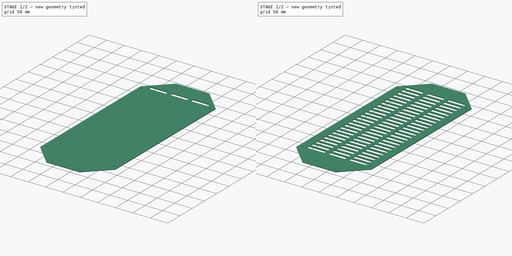
[diagram: build sequence overview — one tinted view per stage of 2, left to right]
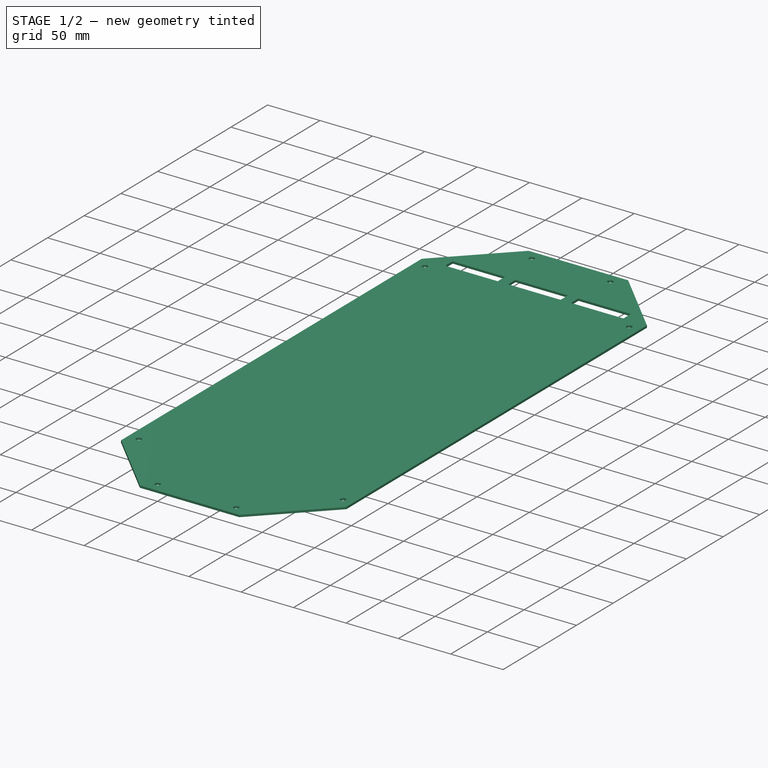
[diagram: stage 1 of 2 — iso view after this stage's code; geometry added in this stage tinted green]
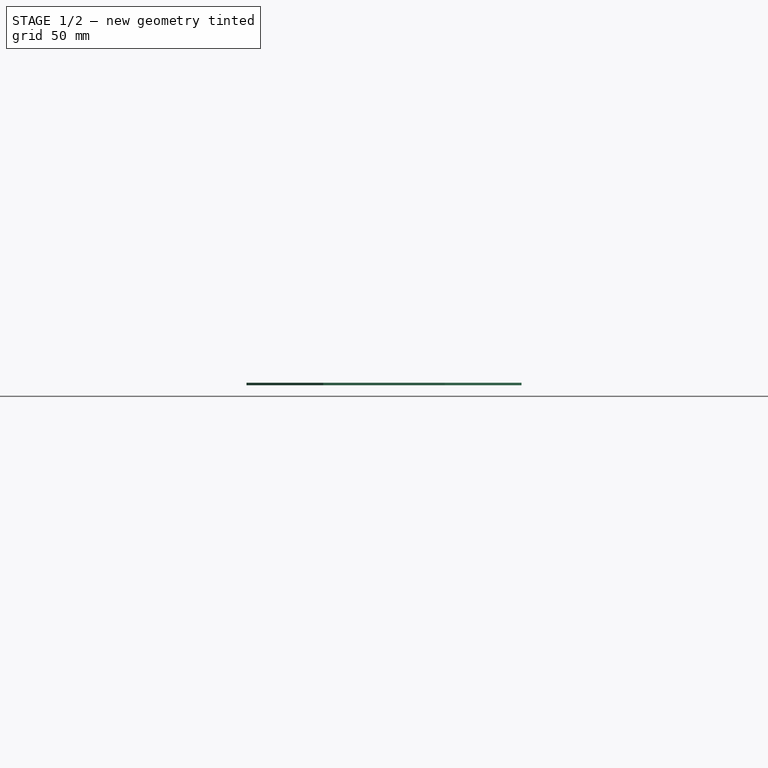
[diagram: stage 1 of 2 — front view after this stage's code; geometry added in this stage tinted green]
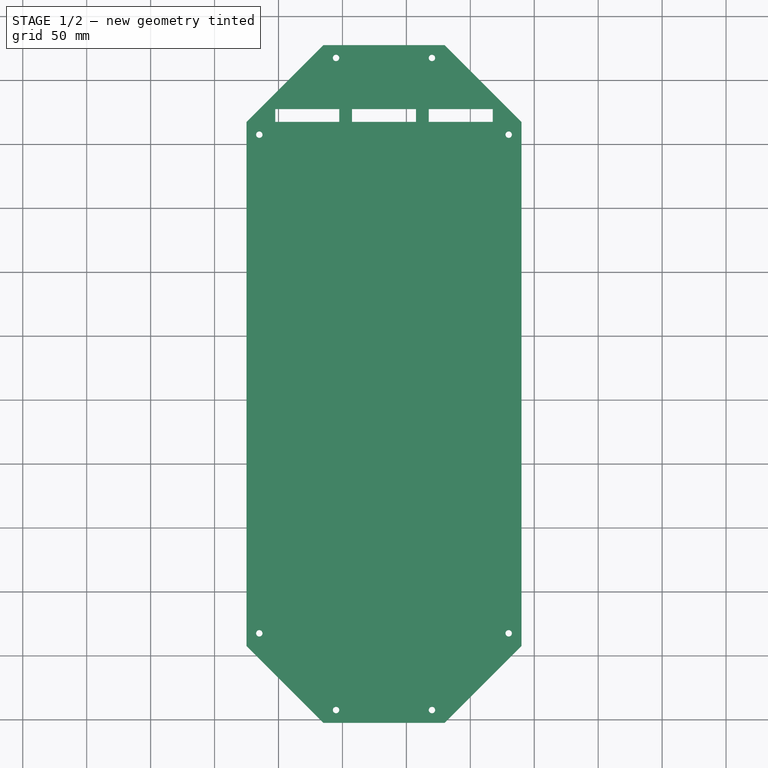
[diagram: stage 1 of 2 — top view after this stage's code; geometry added in this stage tinted green]
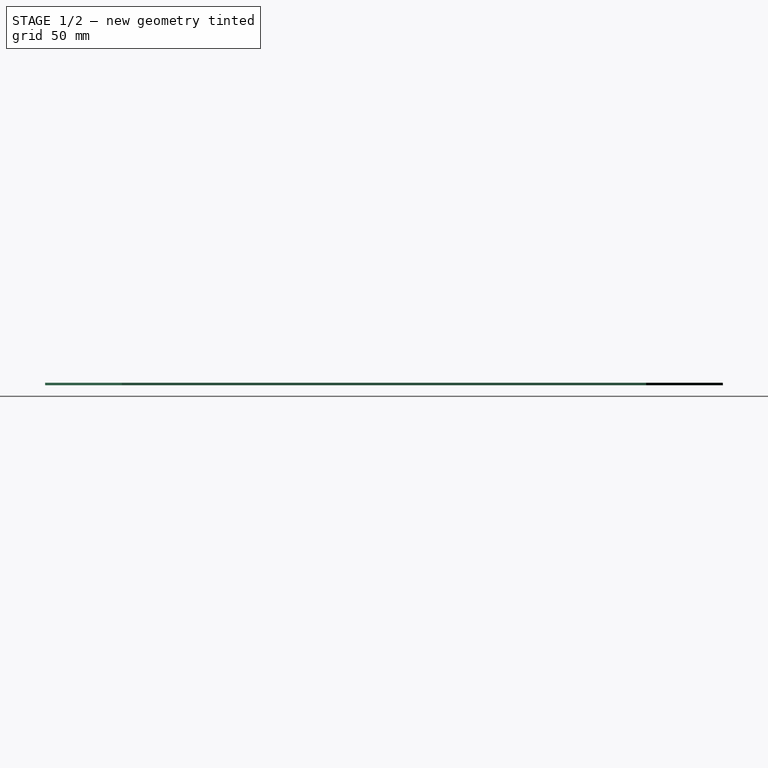
[diagram: stage 1 of 2 — right view after this stage's code; geometry added in this stage tinted green]
FCSTD DOCUMENT  (FreeCAD 0.16R6698 (Git))
Label: Back_Plate
License: All rights reserved
LicenseURL: http://en.wikipedia.org/wiki/All_rights_reserved
objects: Sketcher::SketchObject×2, PartDesign::Pad×1, PartDesign::Pocket×1, PartDesign::LinearPattern×1
note: 7 computed .brp shape members not serialized (recipe doc carries the construction recipe); baked Part::Feature solids carry a one-line shape summary decoded from their .brp

FEATURE [Sketcher::SketchObject] Sketch
  sketch-geometry (16):
    g0: LineSegment StartX=-15 StartY=277.5 StartZ=0 EndX=80 EndY=277.5 EndZ=0
    g1: LineSegment StartX=140 StartY=217.5 StartZ=0 EndX=140 EndY=-192.5 EndZ=0
    g2: LineSegment StartX=80 StartY=-252.5 StartZ=0 EndX=-15 EndY=-252.5 EndZ=0
    g3: LineSegment StartX=-75 StartY=-192.5 StartZ=0 EndX=-75 EndY=217.5 EndZ=0
    g4: LineSegment StartX=-15 StartY=277.5 StartZ=0 EndX=-75 EndY=217.5 EndZ=0
    g5: LineSegment StartX=80 StartY=277.5 StartZ=0 EndX=140 EndY=217.5 EndZ=0
    g6: LineSegment StartX=140 StartY=-192.5 StartZ=0 EndX=80 EndY=-252.5 EndZ=0
    g7: LineSegment StartX=-15 StartY=-252.5 StartZ=0 EndX=-75 EndY=-192.5 EndZ=0
    g8: Circle CenterX=-5 CenterY=267.5 CenterZ=0 NormalX=0 NormalY=0 NormalZ=1 Radius=2.5
    g9: Circle CenterX=70 CenterY=267.5 CenterZ=0 NormalX=0 NormalY=0 NormalZ=1 Radius=2.5
    g10: Circle CenterX=-65 CenterY=207.5 CenterZ=0 NormalX=0 NormalY=0 NormalZ=1 Radius=2.5
    g11: Circle CenterX=-65 CenterY=-182.5 CenterZ=0 NormalX=0 NormalY=0 NormalZ=1 Radius=2.5
    g12: Circle CenterX=-5 CenterY=-242.5 CenterZ=0 NormalX=0 NormalY=0 NormalZ=1 Radius=2.5
    g13: Circle CenterX=70 CenterY=-242.5 CenterZ=0 NormalX=0 NormalY=0 NormalZ=1 Radius=2.5
    g14: Circle CenterX=130 CenterY=-182.5 CenterZ=0 NormalX=0 NormalY=0 NormalZ=1 Radius=2.5
    g15: Circle CenterX=130 CenterY=207.5 CenterZ=0 NormalX=0 NormalY=0 NormalZ=1 Radius=2.5
  constraints (44):
    c: Horizontal(g0)
    c: Horizontal(g2)
    c: Vertical(g1)
    c: Vertical(g3)
    c: Coincident(g4,g0)
    c: Coincident(g4,g3)
    c: Coincident(g5,g0)
    c: Coincident(g5,g1)
    c: Coincident(g6,g1)
    c: Coincident(g6,g2)
    c: Coincident(g7,g2)
    c: Coincident(g7,g3)
    c: DistanceX(g7,g7) = 60
    c: DistanceY(g7,g7) = 60
    c: DistanceY(g4,g4) = 60
    c: DistanceX(g4,g4) = 60
    c: DistanceX(g6,g6) = 60
    c: DistanceY(g6,g6) = 60
    c: DistanceY(g5,g5) = 60
    c: DistanceX(g5,g5) = 60
    c: DistanceX(g0,g0) = 95
    c: DistanceY(g3,g3) = 410
    c: Radius(g15) = 2.5
    c: Equal(g15,g9)
    c: Equal(g15,g8)
    c: Equal(g15, g10-g14) x5
    c: DistanceY(g2,g12) = 10
    c: DistanceX(g3,g11) = 10
    c: DistanceY(g2,g13) = 10
    c: DistanceX(g14,g1) = 10
    c: DistanceX(g13,g2) = 10
    c: DistanceY(g1,g14) = 10
    c: DistanceX(g2,g12) = 10
    c: DistanceY(g3,g11) = 10
    c: DistanceX(g3,g10) = 10
    c: DistanceY(g10,g3) = 10
    c: DistanceY(g8,g0) = 10
    c: DistanceX(g0,g8) = 10
    c: DistanceX(g9,g0) = 10
    c: DistanceY(g9,g0) = 10
    c: DistanceX(g15,g1) = 10
    c: DistanceY(g15,g1) = 10
    c: DistanceX(g-1,g1) = 140
    c: DistanceY(g-1,g3) = 217.5
FEATURE [PartDesign::Pad] Pad
  Length = 2
  Length2 = 100
  Sketch = -> Sketch
  Type = 0
FEATURE [Sketcher::SketchObject] Sketch001
  ExternalGeometry = -> [Pad]
  Placement = pos=(0,0,2) rot=(0,0,1;0rad)
  Support = -> Pad [Face18]
  sketch-geometry (12):
    g0: LineSegment StartX=-52.5 StartY=217.5 StartZ=0 EndX=-2.5 EndY=217.5 EndZ=0
    g1: LineSegment StartX=-2.5 StartY=217.5 StartZ=0 EndX=-2.5 EndY=227.5 EndZ=0
    g2: LineSegment StartX=117.5 StartY=217.5 StartZ=0 EndX=67.5 EndY=217.5 EndZ=0
    g3: LineSegment StartX=67.5 StartY=217.5 StartZ=0 EndX=67.5 EndY=227.5 EndZ=0
    g4: LineSegment StartX=117.5 StartY=217.5 StartZ=0 EndX=117.5 EndY=227.5 EndZ=0
    g5: LineSegment StartX=-52.5 StartY=217.5 StartZ=0 EndX=-52.5 EndY=227.5 EndZ=0
    g6: LineSegment StartX=-2.5 StartY=227.5 StartZ=0 EndX=-52.5 EndY=227.5 EndZ=0
    g7: LineSegment StartX=67.5 StartY=227.5 StartZ=0 EndX=117.5 EndY=227.5 EndZ=0
    g8: LineSegment StartX=7.5 StartY=227.5 StartZ=0 EndX=57.5 EndY=227.5 EndZ=0
    g9: LineSegment StartX=57.5 StartY=227.5 StartZ=0 EndX=57.5 EndY=217.5 EndZ=0
    g10: LineSegment StartX=57.5 StartY=217.5 StartZ=0 EndX=7.5 EndY=217.5 EndZ=0
    g11: LineSegment StartX=7.5 StartY=217.5 StartZ=0 EndX=7.5 EndY=227.5 EndZ=0
  constraints (36):
    c: Coincident(g0,g1)
    c: Horizontal(g0)
    c: Vertical(g1)
    c: Coincident(g2,g3)
    c: Horizontal(g2)
    c: Vertical(g3)
    c: DistanceX(g0,g0) = 50
    c: DistanceX(g2,g2) = 50
    c: DistanceY(g0,g2) = 0
    c: Coincident(g4,g2)
    c: Vertical(g4)
    c: Coincident(g5,g0)
    c: Vertical(g5)
    c: Horizontal(g6)
    c: Horizontal(g7)
    c: Coincident(g1,g6)
    c: Coincident(g3,g7)
    c: Coincident(g4,g7)
    c: Coincident(g5,g6)
    c: Coincident(g8,g9)
    c: Coincident(g9,g10)
    c: Coincident(g10,g11)
    c: Coincident(g11,g8)
    c: Horizontal(g8)
    c: Horizontal(g10)
    c: Vertical(g9)
    c: Vertical(g11)
    c: DistanceX(g8,g8) = 50
    c: DistanceY(g3,g8) = 0
    c: DistanceY(g8,g1) = 0
    c: DistanceY(g2,g9) = 0
    c: DistanceY(g5,g5) = 10
    c: DistanceX(g1,g8) = 10
    c: DistanceX(g8,g3) = 10
    c: DistanceX(g4,g-3) = 22.5
    c: DistanceY(g-4,g0) = 0
FEATURE [PartDesign::Pocket] Pocket
  Length = 5
  Sketch = -> Sketch001
  Type = 0
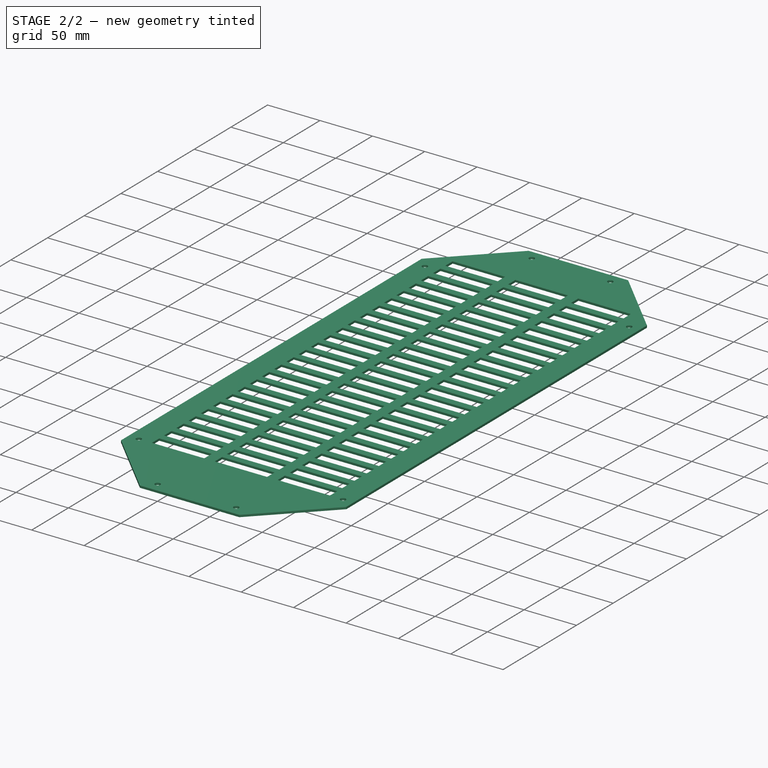
[diagram: stage 2 of 2 — iso view after this stage's code; geometry added in this stage tinted green]
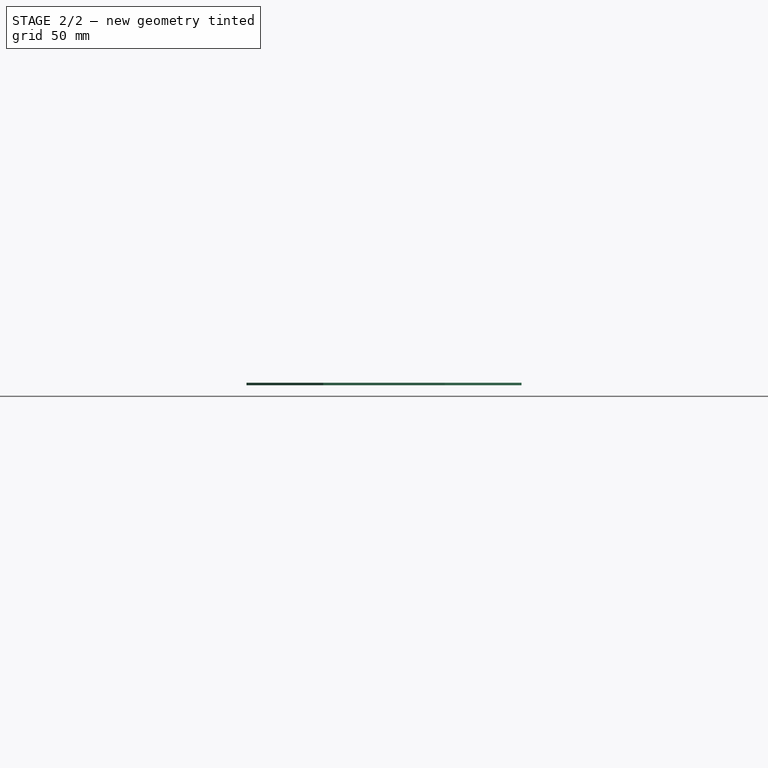
[diagram: stage 2 of 2 — front view after this stage's code; geometry added in this stage tinted green]
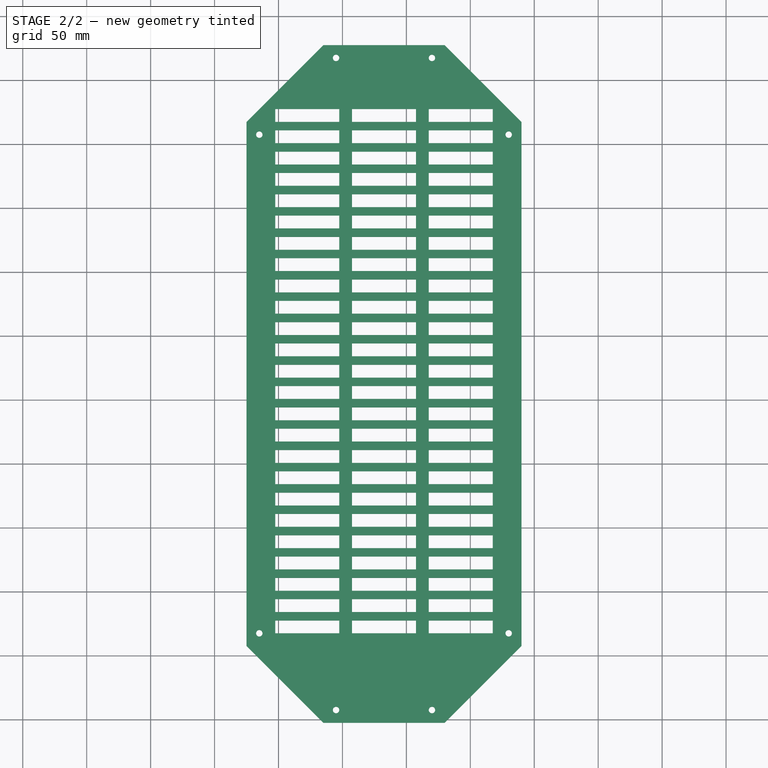
[diagram: stage 2 of 2 — top view after this stage's code; geometry added in this stage tinted green]
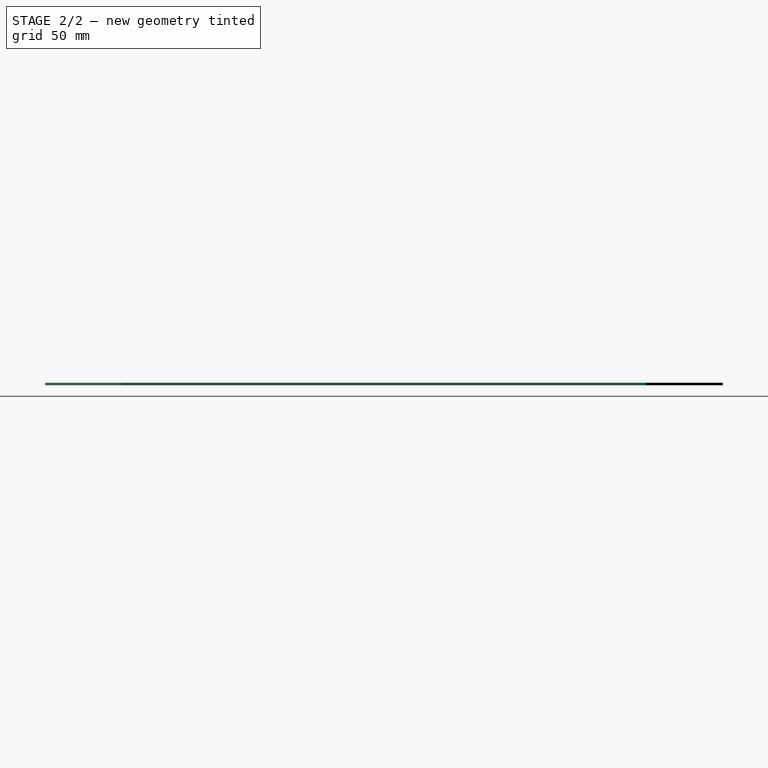
[diagram: stage 2 of 2 — right view after this stage's code; geometry added in this stage tinted green]
FEATURE [PartDesign::LinearPattern] LinearPattern
  Direction = -> Sketch001 [V_Axis]
  Length = 400
  Occurrences = 25
  Originals = -> [Pocket]
  Reversed = true
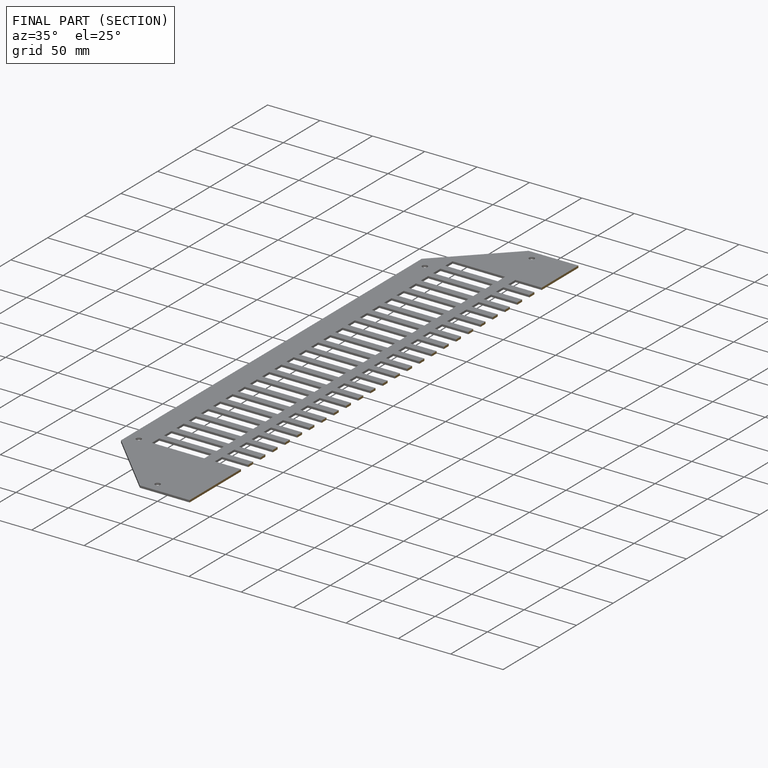
[diagram: finished part — half-section view (interior)]
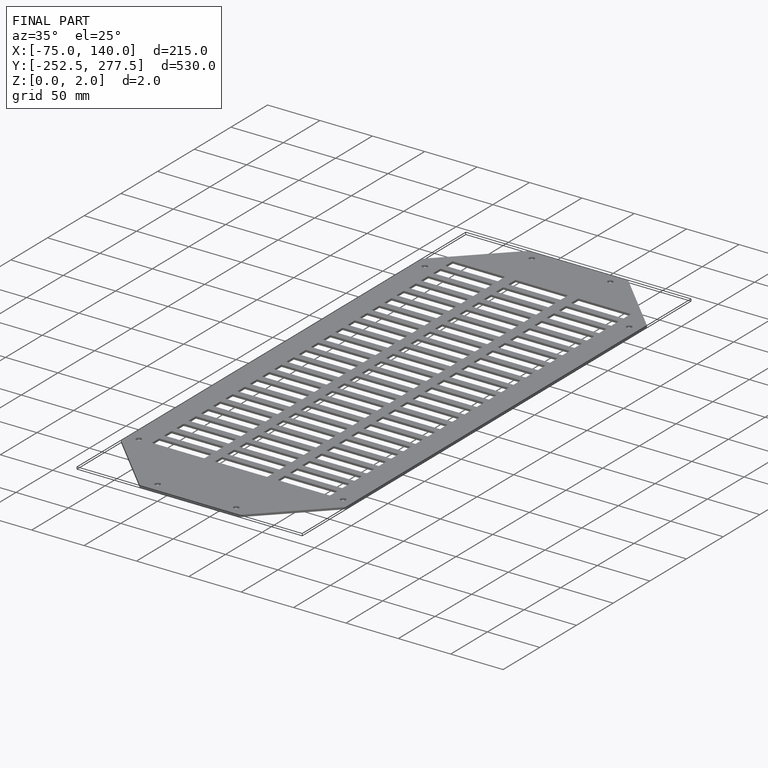
[diagram: finished part — iso view with bounding-box wireframe]
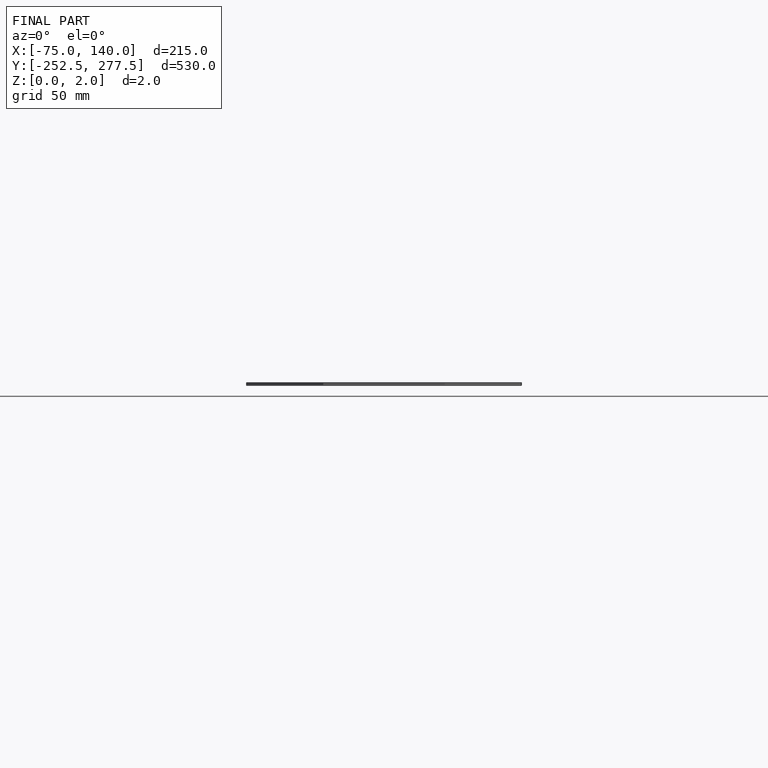
[diagram: finished part — front view with bounding-box wireframe]
